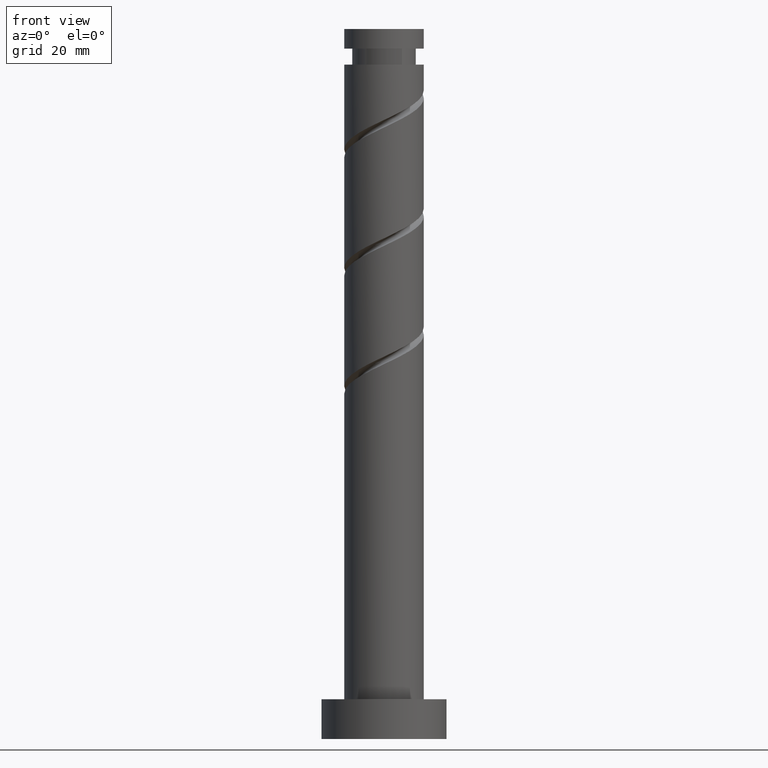
[diagram: clean part render]
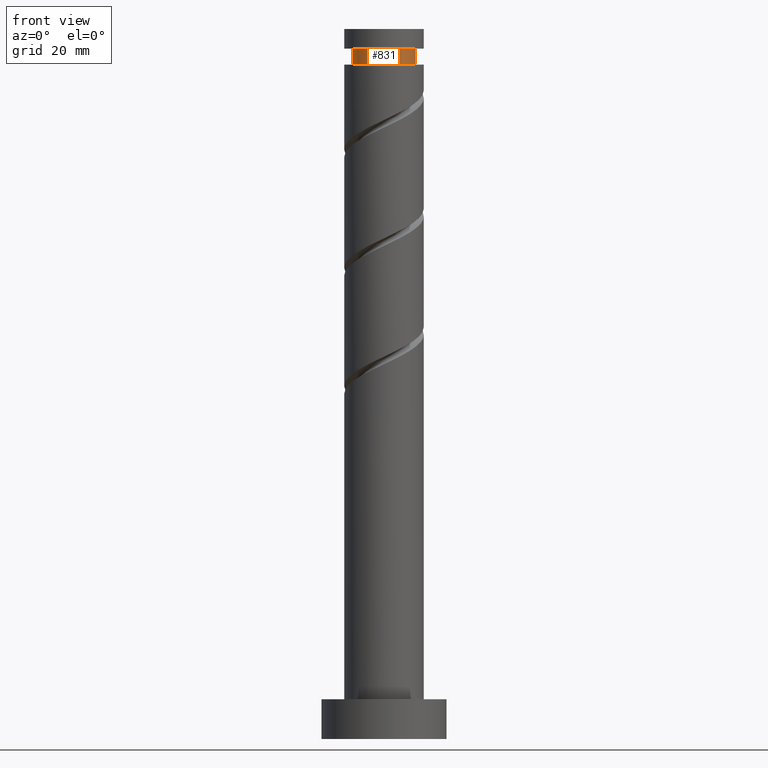
[diagram: same view with one face highlighted and labeled with its STEP entity id]
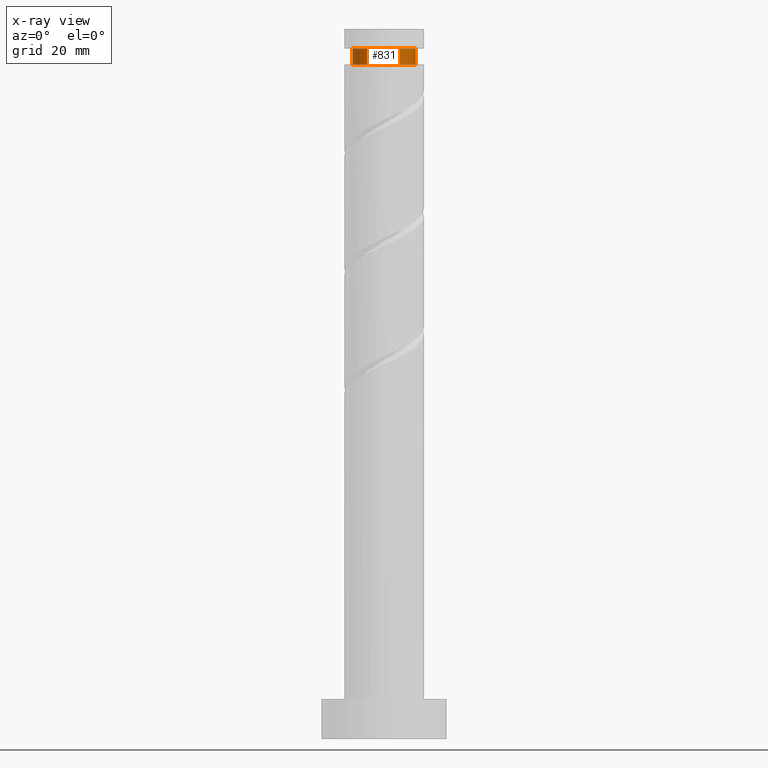
[diagram: x-ray of the same camera — body ghosted, the highlighted face saturated]
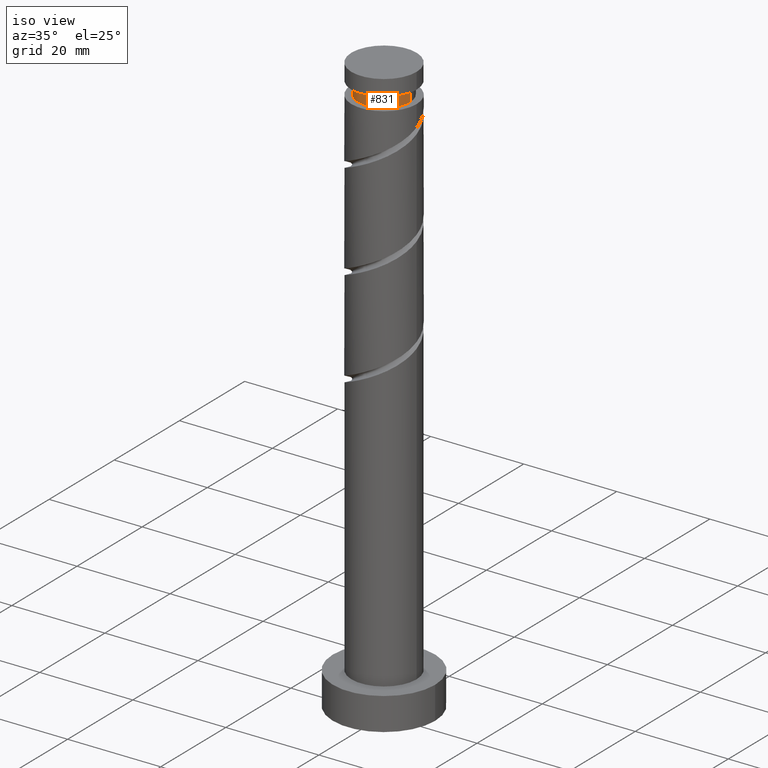
[diagram: same view with one face highlighted and labeled with its STEP entity id]
A machine part, front view. The second image highlights one B-rep face of the part: STEP entity #831.
The next image is the same camera in x-ray: the body ghosted, the highlighted face saturated — about 0% of this face is hidden behind the body in this view.
A second angle (iso view) of the same face is appended — the face is thin or edge-on in the first view.
In plain terms, the highlighted cylindrical surface (edge-blend (fillet) strip) has radius 5.6 mm, axis along (-0, -0, -1).
Its self-contained STEP definition (entity closure, byte-faithful):
#29 = VERTEX_POINT ( 'NONE', #175 ) ;
#175 = CARTESIAN_POINT ( 'NONE',  ( -5.599999999999998757, 0.000000000000000000, 121.5443822883741802 ) ) ;
#252 = AXIS2_PLACEMENT_3D ( 'NONE', #1521, #420, #1558 ) ;
#299 = DIRECTION ( 'NONE',  ( -0.000000000000000000, -0.000000000000000000, -1.000000000000000000 ) ) ;
#314 = VERTEX_POINT ( 'NONE', #474 ) ;
#330 = VECTOR ( 'NONE', #1350, 1000.000000000000000 ) ;
#348 = LINE ( 'NONE', #1360, #330 ) ;
#420 = DIRECTION ( 'NONE',  ( -0.000000000000000000, -0.000000000000000000, -1.000000000000000000 ) ) ;
#444 = DIRECTION ( 'NONE',  ( -0.000000000000000000, -0.000000000000000000, -1.000000000000000000 ) ) ;
#474 = CARTESIAN_POINT ( 'NONE',  ( -5.599999999999998757, 0.000000000000000000, 118.7443822883741831 ) ) ;
#545 = FACE_OUTER_BOUND ( 'NONE', #1224, .T. ) ;
#659 = DIRECTION ( 'NONE',  ( -0.000000000000000000, -0.000000000000000000, -1.000000000000000000 ) ) ;
#676 = EDGE_CURVE ( 'NONE', #29, #314, #348, .T. ) ;
#692 = DIRECTION ( 'NONE',  ( -1.000000000000000000, 0.000000000000000000, 0.000000000000000000 ) ) ;
#703 = ORIENTED_EDGE ( 'NONE', *, *, #922, .T. ) ;
#708 = CIRCLE ( 'NONE', #1136, 5.599999999999998757 ) ;
#710 = AXIS2_PLACEMENT_3D ( 'NONE', #1504, #659, #902 ) ;
#736 = VECTOR ( 'NONE', #299, 1000.000000000000000 ) ;
#797 = EDGE_CURVE ( 'NONE', #1313, #314, #957, .T. ) ;
#805 = CARTESIAN_POINT ( 'NONE',  ( 5.599999999999998757, 6.858022075225176580E-16, 118.7443822883741831 ) ) ;
#825 = CARTESIAN_POINT ( 'NONE',  ( 0.000000000000000000, 0.000000000000000000, 121.5443822883741802 ) ) ;
#831 = ADVANCED_FACE ( 'NONE', ( #545 ), #1045, .T. ) ;
#838 = VERTEX_POINT ( 'NONE', #1534 ) ;
#883 = ORIENTED_EDGE ( 'NONE', *, *, #797, .F. ) ;
#902 = DIRECTION ( 'NONE',  ( -1.000000000000000000, 0.000000000000000000, 0.000000000000000000 ) ) ;
#922 = EDGE_CURVE ( 'NONE', #838, #29, #708, .T. ) ;
#957 = CIRCLE ( 'NONE', #710, 5.599999999999998757 ) ;
#1045 = CYLINDRICAL_SURFACE ( 'NONE', #252, 5.599999999999998757 ) ;
#1046 = ORIENTED_EDGE ( 'NONE', *, *, #1090, .F. ) ;
#1090 = EDGE_CURVE ( 'NONE', #838, #1313, #1188, .T. ) ;
#1136 = AXIS2_PLACEMENT_3D ( 'NONE', #825, #444, #692 ) ;
#1188 = LINE ( 'NONE', #1542, #736 ) ;
#1224 = EDGE_LOOP ( 'NONE', ( #1046, #703, #1351, #883 ) ) ;
#1313 = VERTEX_POINT ( 'NONE', #805 ) ;
#1350 = DIRECTION ( 'NONE',  ( -0.000000000000000000, -0.000000000000000000, -1.000000000000000000 ) ) ;
#1351 = ORIENTED_EDGE ( 'NONE', *, *, #676, .T. ) ;
#1360 = CARTESIAN_POINT ( 'NONE',  ( -5.599999999999998757, 0.000000000000000000, 0.000000000000000000 ) ) ;
#1504 = CARTESIAN_POINT ( 'NONE',  ( 0.000000000000000000, 0.000000000000000000, 118.7443822883741831 ) ) ;
#1521 = CARTESIAN_POINT ( 'NONE',  ( 0.000000000000000000, 0.000000000000000000, 0.000000000000000000 ) ) ;
#1534 = CARTESIAN_POINT ( 'NONE',  ( 5.599999999999998757, 6.858022075225176580E-16, 121.5443822883741802 ) ) ;
#1542 = CARTESIAN_POINT ( 'NONE',  ( 5.599999999999998757, 6.858022075225176580E-16, 0.000000000000000000 ) ) ;
#1558 = DIRECTION ( 'NONE',  ( -1.000000000000000000, 0.000000000000000000, 0.000000000000000000 ) ) ;